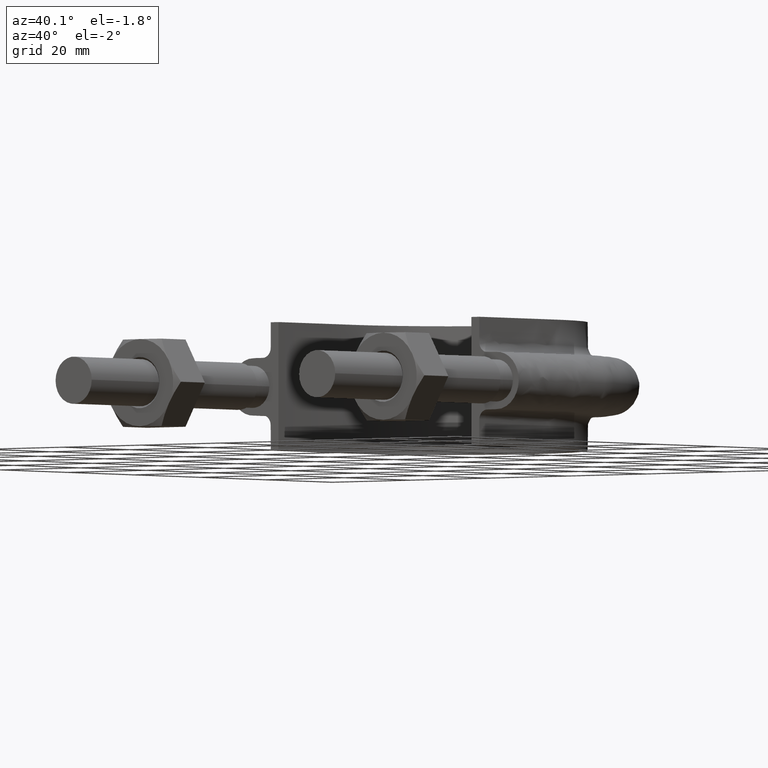
[diagram: clean part render]
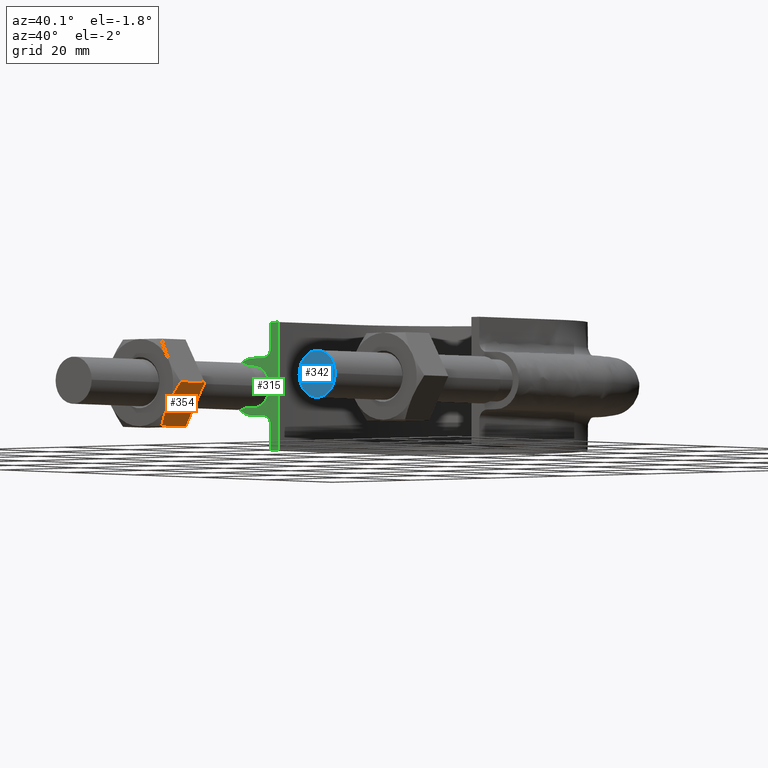
[diagram: same view with three faces highlighted in distinct colors, each labeled with its STEP entity id]
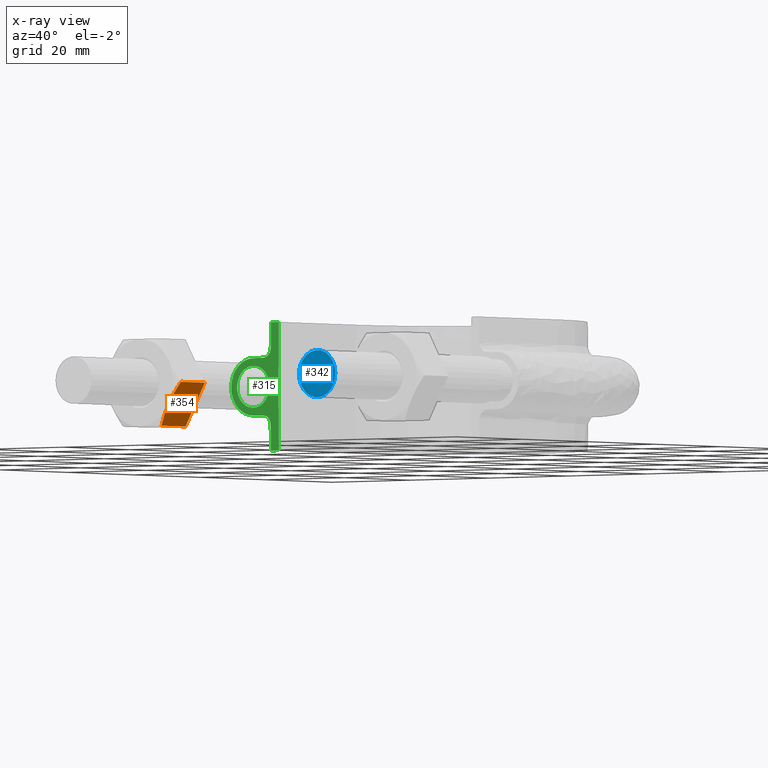
[diagram: x-ray of the same camera — body ghosted, the three highlighted faces saturated]
A machine part, auxiliary view with three faces highlighted in distinct colors.
The next image is the same camera in x-ray (body ghosted, the three faces saturated) — at least one of them is partly hidden behind the body in this view.
Their STEP definitions:

[orange] entity #354 — the highlighted planar face has unit normal (-0.866, 0, 0.5).
#354 = ADVANCED_FACE( '', ( #482 ), #483, .F. );
#482 = FACE_OUTER_BOUND( '', #1481, .T. );
#483 = PLANE( '', #1482 );
#1481 = EDGE_LOOP( '', ( #1827, #1828, #1829, #1830, #1831 ) );
#1482 = AXIS2_PLACEMENT_3D( '', #1832, #1833, #1834 );
#1827 = ORIENTED_EDGE( '', *, *, #2193, .F. );
#1828 = ORIENTED_EDGE( '', *, *, #2160, .F. );
#1829 = ORIENTED_EDGE( '', *, *, #2194, .F. );
#1830 = ORIENTED_EDGE( '', *, *, #2177, .F. );
#1831 = ORIENTED_EDGE( '', *, *, #2188, .F. );
#1832 = CARTESIAN_POINT( '', ( -21.1850454237763, 27.9999999999973, -2.84589029859311E-012 ) );
#1833 = DIRECTION( '', ( -0.866025403784293, 5.90322481812929E-017, 0.500000000000252 ) );
#1834 = DIRECTION( '', ( -2.44921270764475E-016, -1.00000000000000, -3.06151588455594E-016 ) );
#2160 = EDGE_CURVE( '', #2341, #2344, #2345, .T. );
#2177 = EDGE_CURVE( '', #2373, #2375, #2376, .T. );
#2188 = EDGE_CURVE( '', #2394, #2373, #2396, .T. );
#2193 = EDGE_CURVE( '', #2344, #2394, #2403, .T. );
#2194 = EDGE_CURVE( '', #2375, #2341, #2404, .F. );
#2341 = VERTEX_POINT( '', #2831 );
#2344 = VERTEX_POINT( '', #2834 );
#2345 = B_SPLINE_CURVE_WITH_KNOTS( '', 3, ( #2835, #2836, #2837, #2838, #2839, #2840 ), .UNSPECIFIED., .F., .F., ( 4, 2, 4 ), ( 0.0107224888714710, 0.0132032657403443, 0.0156840426092177 ), .UNSPECIFIED. );
#2373 = VERTEX_POINT( '', #2890 );
#2375 = VERTEX_POINT( '', #2892 );
#2376 = LINE( '', #2893, #2894 );
#2394 = VERTEX_POINT( '', #2916 );
#2396 = LINE( '', #2918, #2919 );
#2403 = B_SPLINE_CURVE_WITH_KNOTS( '', 3, ( #2939, #2940, #2941, #2942, #2943, #2944 ), .UNSPECIFIED., .F., .F., ( 4, 2, 4 ), ( 0.0156840426092177, 0.0181633795370703, 0.0206427164649230 ), .UNSPECIFIED. );
#2404 = LINE( '', #2945, #2946 );
#2831 = CARTESIAN_POINT( '', ( -26.0775337474862, 20.7505553499438, -8.47403835210005 ) );
#2834 = CARTESIAN_POINT( '', ( -23.6387840678335, 19.9999999999973, -4.25000000000213 ) );
#2835 = CARTESIAN_POINT( '', ( -26.0775337474862, 20.7505553499438, -8.47403835210005 ) );
#2836 = CARTESIAN_POINT( '', ( -25.6802210343051, 20.5222200930387, -7.78587254637779 ) );
#2837 = CARTESIAN_POINT( '', ( -25.2793853789963, 20.3336547117146, -7.09160482589831 ) );
#2838 = CARTESIAN_POINT( '', ( -24.4674746525570, 20.0721149177790, -5.68533419649621 ) );
#2839 = CARTESIAN_POINT( '', ( -24.0563234446395, 19.9999999999973, -4.97319941479027 ) );
#2840 = CARTESIAN_POINT( '', ( -23.6387840678335, 19.9999999999973, -4.25000000000213 ) );
#2890 = CARTESIAN_POINT( '', ( -21.2000343881808, 27.9999999999973, -0.0259616479042222 ) );
#2892 = CARTESIAN_POINT( '', ( -26.0775337474862, 27.9999999999973, -8.47403835210004 ) );
#2893 = CARTESIAN_POINT( '', ( -18.7387840678310, 27.9999999999973, 4.23704895708394 ) );
#2894 = VECTOR( '', #3277, 1000.00000000000 );
#2916 = CARTESIAN_POINT( '', ( -21.2000343881808, 20.7505553499438, -0.0259616479042245 ) );
#2918 = CARTESIAN_POINT( '', ( -21.2000343881808, 27.9999999999973, -0.0259616479042222 ) );
#2919 = VECTOR( '', #3300, 1000.00000000000 );
#2939 = CARTESIAN_POINT( '', ( -23.6387840678335, 19.9999999999973, -4.25000000000214 ) );
#2940 = CARTESIAN_POINT( '', ( -23.2214870473974, 19.9999999999973, -3.52722035876016 ) );
#2941 = CARTESIAN_POINT( '', ( -22.8092349312323, 20.0723104611236, -2.81317874803494 ) );
#2942 = CARTESIAN_POINT( '', ( -21.9973803563529, 20.3339943747706, -1.40700537598748 ) );
#2943 = CARTESIAN_POINT( '', ( -21.5968551617189, 20.5225028103067, -0.713275389170428 ) );
#2944 = CARTESIAN_POINT( '', ( -21.2000343881808, 20.7505553499438, -0.0259616479042242 ) );
#2945 = CARTESIAN_POINT( '', ( -26.0775337474862, 27.9999999999973, -8.47403835210004 ) );
#2946 = VECTOR( '', #3305, 1000.00000000000 );
#3277 = DIRECTION( '', ( -0.500000000000252, 3.87595688393758E-016, -0.866025403784293 ) );
#3300 = DIRECTION( '', ( 2.44921270764475E-016, 1.00000000000000, 3.06151588455594E-016 ) );
#3305 = DIRECTION( '', ( 2.44921270764475E-016, 1.00000000000000, 3.06151588455594E-016 ) );

[blue] entity #342 — the highlighted planar face has unit normal (-0, -1, -0).
#342 = ADVANCED_FACE( '', ( #455 ), #456, .T. );
#455 = FACE_OUTER_BOUND( '', #1454, .T. );
#456 = PLANE( '', #1455 );
#1454 = EDGE_LOOP( '', ( #1744 ) );
#1455 = AXIS2_PLACEMENT_3D( '', #1745, #1746, #1747 );
#1744 = ORIENTED_EDGE( '', *, *, #2156, .T. );
#1745 = CARTESIAN_POINT( '', ( 31.0000000000000, -7.59255939369874E-015, 1.98998532496135E-016 ) );
#1746 = DIRECTION( '', ( -2.44921270764475E-016, -1.00000000000000, -3.06151588455594E-016 ) );
#1747 = DIRECTION( '', ( 1.00000000000000, -2.44921270764475E-016, -3.74915180455534E-032 ) );
#2156 = EDGE_CURVE( '', #2335, #2335, #2336, .T. );
#2335 = VERTEX_POINT( '', #2825 );
#2336 = CIRCLE( '', #2826, 4.60000000000000 );
#2825 = CARTESIAN_POINT( '', ( 35.6000000000000, -8.71919723921533E-015, 1.98998532496135E-016 ) );
#2826 = AXIS2_PLACEMENT_3D( '', #3232, #3233, #3234 );
#3232 = CARTESIAN_POINT( '', ( 31.0000000000000, -7.59255939369874E-015, 1.98998532496135E-016 ) );
#3233 = DIRECTION( '', ( -2.44921270764475E-016, -1.00000000000000, -3.06151588455594E-016 ) );
#3234 = DIRECTION( '', ( 1.00000000000000, -2.44921270764475E-016, -3.74915180455534E-032 ) );

[green] entity #315 — the highlighted planar face has unit normal (0, 1, 0).
#315 = ADVANCED_FACE( '', ( #394, #395 ), #396, .F. );
#394 = FACE_BOUND( '', #568, .T. );
#395 = FACE_OUTER_BOUND( '', #569, .T. );
#396 = PLANE( '', #570 );
#568 = EDGE_LOOP( '', ( #1567 ) );
#569 = EDGE_LOOP( '', ( #1568, #1569, #1570, #1571 ) );
#570 = AXIS2_PLACEMENT_3D( '', #1572, #1573, #1574 );
#1567 = ORIENTED_EDGE( '', *, *, #2111, .T. );
#1568 = ORIENTED_EDGE( '', *, *, #2112, .F. );
#1569 = ORIENTED_EDGE( '', *, *, #2113, .F. );
#1570 = ORIENTED_EDGE( '', *, *, #2114, .T. );
#1571 = ORIENTED_EDGE( '', *, *, #2115, .T. );
#1572 = CARTESIAN_POINT( '', ( -40.0000000000000, 54.3000000000000, 12.5000000000000 ) );
#1573 = DIRECTION( '', ( 1.22460635382238E-016, 1.00000000000000, 0.000000000000000 ) );
#1574 = DIRECTION( '', ( -1.00000000000000, 1.22460635382238E-016, 0.000000000000000 ) );
#2111 = EDGE_CURVE( '', #2263, #2263, #2264, .T. );
#2112 = EDGE_CURVE( '', #2265, #2266, #2267, .T. );
#2113 = EDGE_CURVE( '', #2268, #2265, #2269, .T. );
#2114 = EDGE_CURVE( '', #2268, #2270, #2271, .T. );
#2115 = EDGE_CURVE( '', #2270, #2266, #2272, .T. );
#2263 = VERTEX_POINT( '', #2513 );
#2264 = B_SPLINE_CURVE_WITH_KNOTS( '', 3, ( #2514, #2515, #2516, #2517, #2518, #2519, #2520, #2521, #2522, #2523 ), .UNSPECIFIED., .T., .F., ( 4, 1, 1, 1, 1, 1, 1, 4 ), ( 0.000000000000000, 0.00365634574703305, 0.00731269149406610, 0.0109690372410991, 0.0146253829881322, 0.0182817287351652, 0.0219380744821983, 0.0255944202292313 ), .UNSPECIFIED. );
#2265 = VERTEX_POINT( '', #2524 );
#2266 = VERTEX_POINT( '', #2525 );
#2267 = LINE( '', #2526, #2527 );
#2268 = VERTEX_POINT( '', #2528 );
#2269 = LINE( '', #2529, #2530 );
#2270 = VERTEX_POINT( '', #2531 );
#2271 = B_SPLINE_CURVE_WITH_KNOTS( '', 3, ( #2532, #2533, #2534, #2535, #2536, #2537, #2538, #2539, #2540, #2541, #2542, #2543, #2544, #2545, #2546, #2547, #2548, #2549, #2550, #2551, #2552, #2553, #2554, #2555, #2556, #2557, #2558, #2559, #2560, #2561, #2562 ), .UNSPECIFIED., .F., .F., ( 4, 3, 1, 1, 1, 3, 3, 1, 1, 1, 3, 3, 1, 1, 1, 3, 4 ), ( 0.000000000000000, 0.00240476149769629, 0.00480952299539259, 0.00721428449308888, 0.00961904599078517, 0.0120238074884815, 0.0144285689861778, 0.0168333304838741, 0.0192380919815703, 0.0216428534792666, 0.0240476149769629, 0.0264523764746592, 0.0288571379723555, 0.0312618994700518, 0.0336666609677481, 0.0360714224654444, 0.0384761839631407 ), .UNSPECIFIED. );
#2272 = LINE( '', #2563, #2564 );
#2513 = CARTESIAN_POINT( '', ( -26.9000000000000, 54.3000000000000, 5.35862407079699E-016 ) );
#2514 = CARTESIAN_POINT( '', ( -26.9000000000000, 54.3000000000000, 5.42101086242752E-016 ) );
#2515 = CARTESIAN_POINT( '', ( -26.9000000000000, 54.3000000000000, -1.22184926194408 ) );
#2516 = CARTESIAN_POINT( '', ( -28.0768231851220, 54.3000000000000, -3.66554778583225 ) );
#2517 = CARTESIAN_POINT( '', ( -32.0432697263483, 54.3000000000000, -4.57086332538454 ) );
#2518 = CARTESIAN_POINT( '', ( -35.2241128848102, 54.3000000000000, -2.03422555230246 ) );
#2519 = CARTESIAN_POINT( '', ( -35.2241128848102, 54.3000000000000, 2.03422555230246 ) );
#2520 = CARTESIAN_POINT( '', ( -32.0432697263483, 54.3000000000000, 4.57086332538453 ) );
#2521 = CARTESIAN_POINT( '', ( -28.0768231851220, 54.3000000000000, 3.66554778583225 ) );
#2522 = CARTESIAN_POINT( '', ( -26.9000000000000, 54.3000000000000, 1.22184926194408 ) );
#2523 = CARTESIAN_POINT( '', ( -26.9000000000000, 54.3000000000000, 5.42101086242752E-016 ) );
#2524 = CARTESIAN_POINT( '', ( -24.5500000000000, 54.3000000000000, 12.5000000000000 ) );
#2525 = CARTESIAN_POINT( '', ( -24.5500000000000, 54.3000000000000, -12.5000000000000 ) );
#2526 = CARTESIAN_POINT( '', ( -24.5500000000000, 54.3000000000000, 12.5000100000910 ) );
#2527 = VECTOR( '', #3175, 1000.00000000000 );
#2528 = CARTESIAN_POINT( '', ( -26.5500000000000, 54.3000000000000, 12.5000000000000 ) );
#2529 = CARTESIAN_POINT( '', ( -40.0000000000000, 54.3000000000000, 12.5000000000000 ) );
#2530 = VECTOR( '', #3176, 1000.00000000000 );
#2531 = CARTESIAN_POINT( '', ( -26.5500000000000, 54.3000000000000, -12.5000000000000 ) );
#2532 = CARTESIAN_POINT( '', ( -26.5500000000000, 54.3000000000000, 12.5000000000000 ) );
#2533 = CARTESIAN_POINT( '', ( -26.5500000000000, 54.3000000000000, 10.8666666666667 ) );
#2534 = CARTESIAN_POINT( '', ( -26.5500000000000, 54.3000000000000, 9.23333333333333 ) );
#2535 = CARTESIAN_POINT( '', ( -26.5500000000000, 54.3000000000000, 7.59999999999999 ) );
#2536 = CARTESIAN_POINT( '', ( -26.5500000000000, 54.3000000000000, 7.33823584172332 ) );
#2537 = CARTESIAN_POINT( '', ( -26.6541362568359, 54.3000000000000, 6.81470752517000 ) );
#2538 = CARTESIAN_POINT( '', ( -27.0989687109389, 54.3000000000000, 6.14896871093887 ) );
#2539 = CARTESIAN_POINT( '', ( -27.7647075251700, 54.3000000000000, 5.70413625683590 ) );
#2540 = CARTESIAN_POINT( '', ( -28.2882358417233, 54.3000000000000, 5.59999999999999 ) );
#2541 = CARTESIAN_POINT( '', ( -28.5500000000000, 54.3000000000000, 5.59999999999999 ) );
#2542 = CARTESIAN_POINT( '', ( -29.3666666666667, 54.3000000000000, 5.60000000000001 ) );
#2543 = CARTESIAN_POINT( '', ( -30.1833333333333, 54.3000000000000, 5.60000000000001 ) );
#2544 = CARTESIAN_POINT( '', ( -31.0000000000000, 54.3000000000000, 5.60000000000001 ) );
#2545 = CARTESIAN_POINT( '', ( -32.4627416997969, 54.3000000000000, 5.60000000000001 ) );
#2546 = CARTESIAN_POINT( '', ( -35.3882250993909, 54.3000000000000, 4.38822509939087 ) );
#2547 = CARTESIAN_POINT( '', ( -37.2058874503046, 54.3000000000000, 9.94452457394278E-015 ) );
#2548 = CARTESIAN_POINT( '', ( -35.3882250993909, 54.3000000000000, -4.38822509939085 ) );
#2549 = CARTESIAN_POINT( '', ( -32.4627416997969, 54.3000000000000, -5.59999999999999 ) );
#2550 = CARTESIAN_POINT( '', ( -31.0000000000000, 54.3000000000000, -5.59999999999999 ) );
#2551 = CARTESIAN_POINT( '', ( -30.1833333333333, 54.3000000000000, -5.59999999999999 ) );
#2552 = CARTESIAN_POINT( '', ( -29.3666666666667, 54.3000000000000, -5.59999999999999 ) );
#2553 = CARTESIAN_POINT( '', ( -28.5500000000000, 54.3000000000000, -5.59999999999999 ) );
#2554 = CARTESIAN_POINT( '', ( -28.2882358417234, 54.3000000000000, -5.59999999999999 ) );
#2555 = CARTESIAN_POINT( '', ( -27.7647075251700, 54.3000000000000, -5.70413625683589 ) );
#2556 = CARTESIAN_POINT( '', ( -27.0989687109389, 54.3000000000000, -6.14896871093886 ) );
#2557 = CARTESIAN_POINT( '', ( -26.6541362568359, 54.3000000000000, -6.81470752516999 ) );
#2558 = CARTESIAN_POINT( '', ( -26.5500000000000, 54.3000000000000, -7.33823584172332 ) );
#2559 = CARTESIAN_POINT( '', ( -26.5500000000000, 54.3000000000000, -7.59999999999998 ) );
#2560 = CARTESIAN_POINT( '', ( -26.5500000000000, 54.3000000000000, -9.23333333333331 ) );
#2561 = CARTESIAN_POINT( '', ( -26.5500000000000, 54.3000000000000, -10.8666666666666 ) );
#2562 = CARTESIAN_POINT( '', ( -26.5500000000000, 54.3000000000000, -12.5000000000000 ) );
#2563 = CARTESIAN_POINT( '', ( -40.0000000000000, 54.3000000000000, -12.5000000000000 ) );
#2564 = VECTOR( '', #3177, 1000.00000000000 );
#3175 = DIRECTION( '', ( 0.000000000000000, 0.000000000000000, -1.00000000000000 ) );
#3176 = DIRECTION( '', ( 1.00000000000000, -1.22460635382238E-016, 0.000000000000000 ) );
#3177 = DIRECTION( '', ( 1.00000000000000, -1.22460635382238E-016, 0.000000000000000 ) );